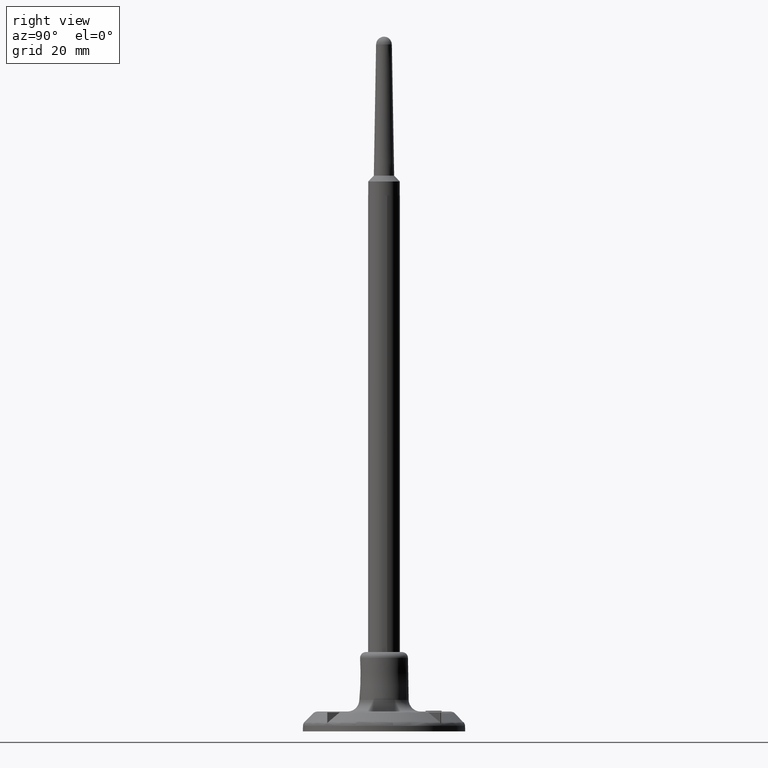
[diagram: clean part render]
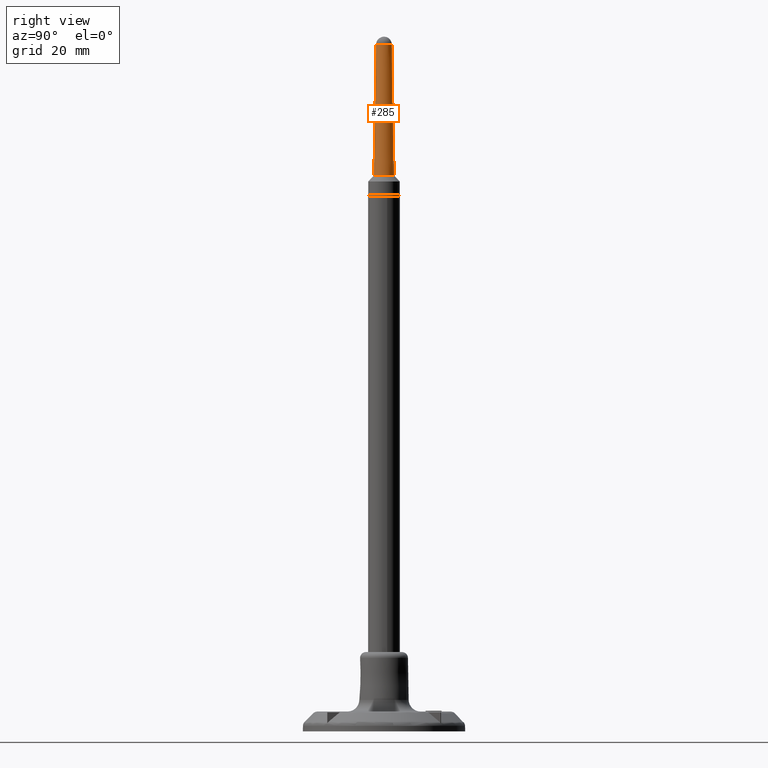
[diagram: same view with one face highlighted and labeled with its STEP entity id]
A machine part, right view. The second image highlights one B-rep face of the part: STEP entity #285.
In plain terms, the highlighted conical surface has half-angle 1 deg.
Its self-contained STEP definition (entity closure, byte-faithful):
#285 = ADVANCED_FACE( '', ( #560, #561 ), #562, .T. );
#560 = FACE_OUTER_BOUND( '', #848, .T. );
#561 = FACE_BOUND( '', #849, .T. );
#562 = CONICAL_SURFACE( '', #850, 2.00000000000000, 0.0174532925199433 );
#848 = EDGE_LOOP( '', ( #1736 ) );
#849 = EDGE_LOOP( '', ( #1737 ) );
#850 = AXIS2_PLACEMENT_3D( '', #1738, #1739, #1740 );
#1736 = ORIENTED_EDGE( '', *, *, #2036, .F. );
#1737 = ORIENTED_EDGE( '', *, *, #2037, .T. );
#1738 = CARTESIAN_POINT( '', ( -1.25941243848936E-011, -1.88361327277814E-012, 172.999628000000 ) );
#1739 = DIRECTION( '', ( 2.37641035415708E-013, 3.56643890845997E-014, -1.00000000000000 ) );
#1740 = DIRECTION( '', ( 0.579993055515421, 0.814621418545993, 1.66883125474278E-013 ) );
#2036 = EDGE_CURVE( '', #2487, #2487, #2488, .T. );
#2037 = EDGE_CURVE( '', #2489, #2489, #2490, .T. );
#2487 = VERTEX_POINT( '', #3277 );
#2488 = CIRCLE( '', #3278, 2.57601714263118 );
#2489 = VERTEX_POINT( '', #3279 );
#2490 = CIRCLE( '', #3280, 2.00000000000000 );
#3277 = CARTESIAN_POINT( '', ( 1.49407205361001, 2.09847873892830, 139.999628000000 ) );
#3278 = AXIS2_PLACEMENT_3D( '', #3641, #3642, #3643 );
#3279 = CARTESIAN_POINT( '', ( 1.15998611101825, 1.62924283709010, 172.999628000000 ) );
#3280 = AXIS2_PLACEMENT_3D( '', #3644, #3645, #3646 );
#3641 = CARTESIAN_POINT( '', ( -4.75197021617526E-012, -7.06688432986351E-013, 139.999628000000 ) );
#3642 = DIRECTION( '', ( 2.37641035415708E-013, 3.56643890845997E-014, -1.00000000000000 ) );
#3643 = DIRECTION( '', ( 0.579993055515421, 0.814621418545993, 1.66883125474278E-013 ) );
#3644 = CARTESIAN_POINT( '', ( -1.25941243848936E-011, -1.88361327277814E-012, 172.999628000000 ) );
#3645 = DIRECTION( '', ( 2.37641035415708E-013, 3.56643890845997E-014, -1.00000000000000 ) );
#3646 = DIRECTION( '', ( 0.579993055515421, 0.814621418545993, 1.66883125474278E-013 ) );